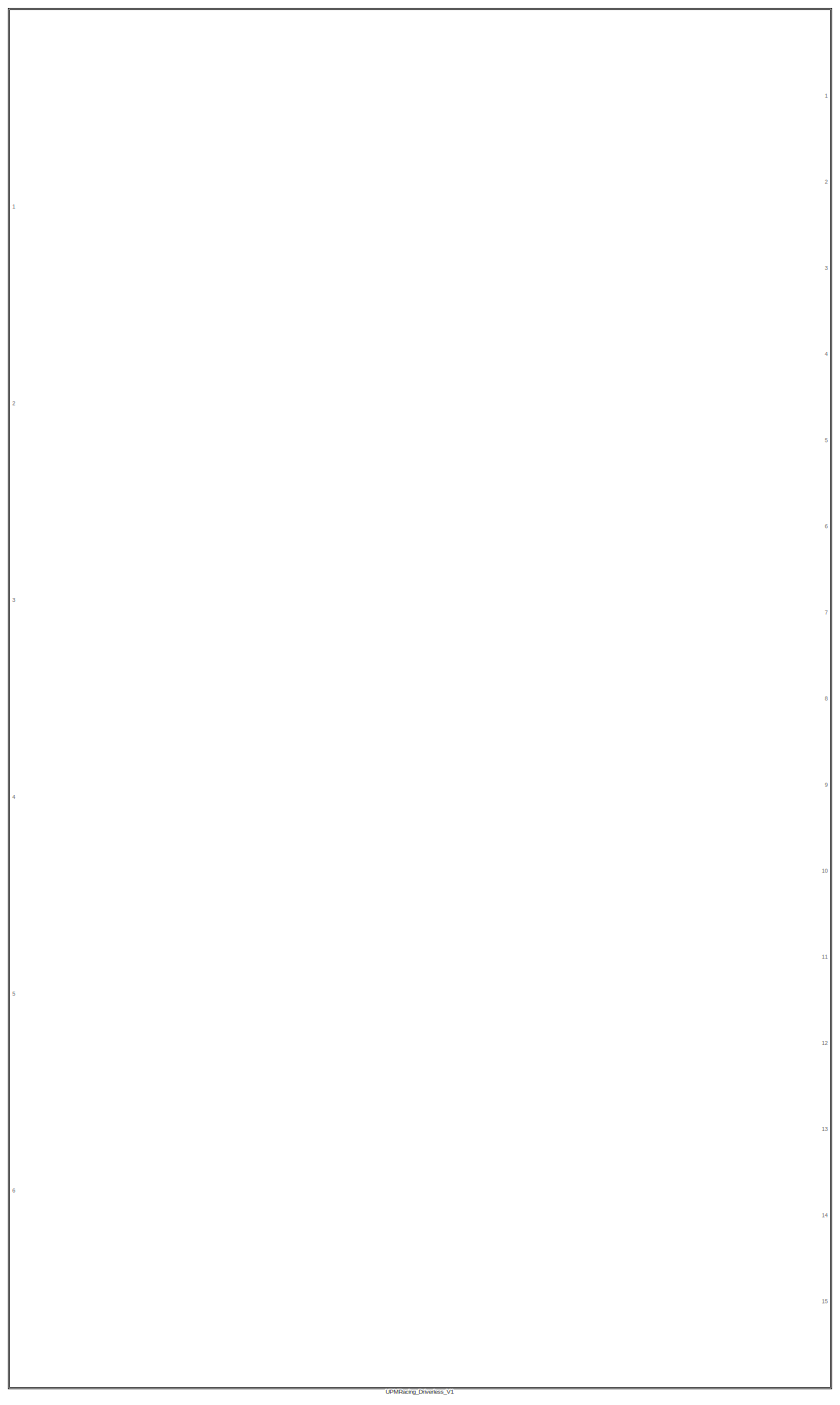
[diagram: root canvas - part 1/1, most of the canvas]
MODEL slx_15a45c7a0e71
KIND model
CONFIG AbsTol = auto
CONFIG EnableMultiTasking = off
CONFIG FixedStep = auto
CONFIG MaxStep = auto
CONFIG MinStep = auto
CONFIG RelTol = 1e-3
CONFIG SampleTimeConstraint = Unconstrained
CONFIG Solver = VariableStepAuto
CONFIG SolverName = VariableStepAuto
CONFIG StartTime = 0.0
CONFIG StopTime = 10.0
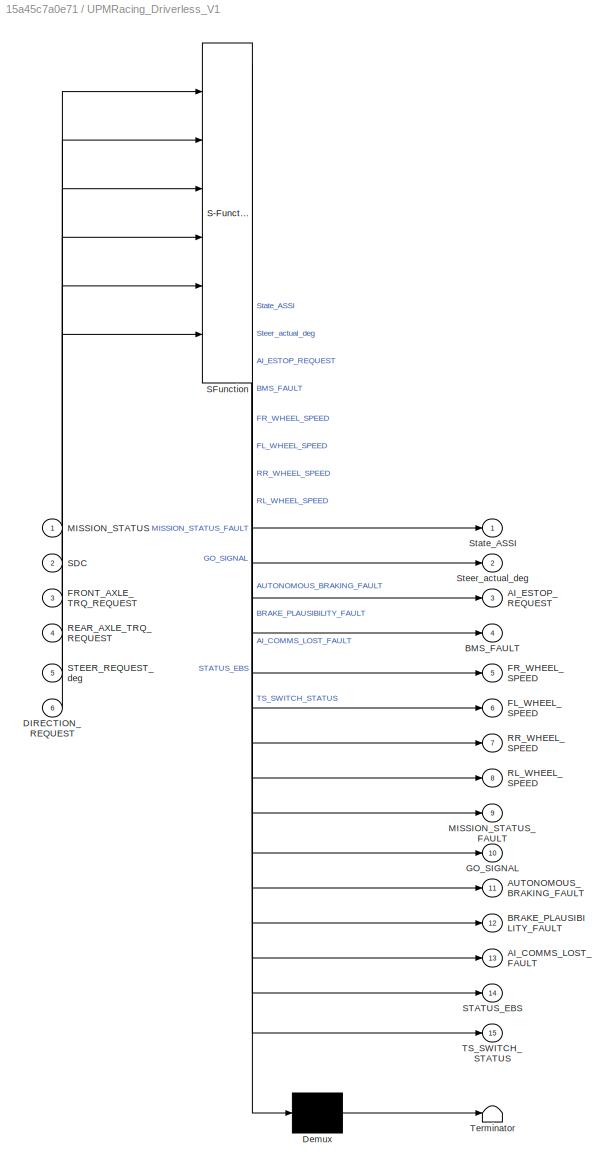
BLOCK [SubSystem] UPMRacing_Driverless_V1 
  ErrorFcn = Stateflow.Translate.translate
  PermitHierarchicalResolution = ExplicitOnly
  Ports = [6, 15]
  RequestExecContextInheritance = off
  SFBlockType = Chart
  TreatAsAtomicUnit = on
BLOCK [Demux] UPMRacing_Driverless_V1 / Demux 
  Outputs = 1
  Ports = [1, 1]
BLOCK [S-Function] UPMRacing_Driverless_V1 / SFunction 
  EnableBusSupport = on
  FunctionName = sf_sfun
  PortCounts = [6 16]
  Ports = [6, 16]
  SFcnIsStateOwnerBlock = off
  SFunctionDeploymentMode = off
  Tag = Stateflow S-Function 3
BLOCK [Terminator] UPMRacing_Driverless_V1 / Terminator 
BLOCK [Outport] UPMRacing_Driverless_V1 /AI_COMMS_LOST_FAULT
  IconDisplay = Port number
  Port = 13
BLOCK [Outport] UPMRacing_Driverless_V1 /AI_ESTOP_REQUEST
  IconDisplay = Port number
  Port = 3
BLOCK [Outport] UPMRacing_Driverless_V1 /AUTONOMOUS_BRAKING_FAULT
  IconDisplay = Port number
  Port = 11
BLOCK [Outport] UPMRacing_Driverless_V1 /BMS_FAULT
  IconDisplay = Port number
  Port = 4
BLOCK [Outport] UPMRacing_Driverless_V1 /BRAKE_PLAUSIBILITY_FAULT
  IconDisplay = Port number
  Port = 12
BLOCK [Inport] UPMRacing_Driverless_V1 /DIRECTION_REQUEST
  IconDisplay = Port number
  Port = 6
BLOCK [Outport] UPMRacing_Driverless_V1 /FL_WHEEL_SPEED
  IconDisplay = Port number
  Port = 6
BLOCK [Inport] UPMRacing_Driverless_V1 /FRONT_AXLE_TRQ_REQUEST
  IconDisplay = Port number
  Port = 3
BLOCK [Outport] UPMRacing_Driverless_V1 /FR_WHEEL_SPEED
  IconDisplay = Port number
  Port = 5
BLOCK [Outport] UPMRacing_Driverless_V1 /GO_SIGNAL
  IconDisplay = Port number
  Port = 10
BLOCK [Inport] UPMRacing_Driverless_V1 /MISSION_STATUS
  IconDisplay = Port number
BLOCK [Outport] UPMRacing_Driverless_V1 /MISSION_STATUS_FAULT
  IconDisplay = Port number
  Port = 9
BLOCK [Inport] UPMRacing_Driverless_V1 /REAR_AXLE_TRQ_REQUEST
  IconDisplay = Port number
  Port = 4
BLOCK [Outport] UPMRacing_Driverless_V1 /RL_WHEEL_SPEED
  IconDisplay = Port number
  Port = 8
BLOCK [Outport] UPMRacing_Driverless_V1 /RR_WHEEL_SPEED
  IconDisplay = Port number
  Port = 7
BLOCK [Inport] UPMRacing_Driverless_V1 /SDC
  IconDisplay = Port number
  Port = 2
BLOCK [Outport] UPMRacing_Driverless_V1 /STATUS_EBS
  IconDisplay = Port number
  Port = 14
BLOCK [Inport] UPMRacing_Driverless_V1 /STEER_REQUEST_deg
  IconDisplay = Port number
  Port = 5
BLOCK [Outport] UPMRacing_Driverless_V1 /State_ASSI
  IconDisplay = Port number
BLOCK [Outport] UPMRacing_Driverless_V1 /Steer_actual_deg
  IconDisplay = Port number
  Port = 2
BLOCK [Outport] UPMRacing_Driverless_V1 /TS_SWITCH_STATUS
  IconDisplay = Port number
  Port = 15
CHART UPMRacing_Driverless_V1
 states=8 transitions=14
  STATE_LABEL 'Main'
  STATE_LABEL 'AS_READY\nentry:\nState_ASSI=2'
  STATE_LABEL 'INTERMIDIATE\nentry:\nState_ASSI=2'
  STATE_LABEL 'AS_DRIVING\nentry:\nState_ASSI=3'
  STATE_LABEL 'EMERGENCY_BRAKE\nentry:\nState_ASSI=4'
  STATE_LABEL 'AS_FINISHED\nentry:\nState_ASSI=5'
  STATE_LABEL 'EMERGENCY_BRAKE_COMPLETED\nentry:\nState_ASSI=4'
  STATE_LABEL 'AS_OFF\nentry:\nState_ASSI = 1\n'
  STATE_LABEL '[FRONT_AXLE_TRQ_REQUEST ~= 0 ||...\nREAR_AXLE_TRQ_REQUEST  ~= 0 ||...\nSTEER_REQUEST_deg  ~= 0 ||...\nSteer_actual_deg >= 5  ||...\nDIRECTION_REQUEST ~= 0]'
  STATE_LABEL '[GO_SIGNAL == 1]'
  STATE_LABEL '[after(5,sec) &...\nFRONT_AXLE_TRQ_REQUEST == 0 &...\nREAR_AXLE_TRQ_REQUEST  == 0 &...\nSTEER_REQUEST_deg  == 0 &...\nSteer_actual_deg < 5  &...\nDIRECTION_REQUEST == 0 &...\nGO_SIGNAL == 0]'
  STATE_LABEL '[SDC==0]'
  STATE_LABEL '[SDC==0 ||...\nAS_SWITCH_STATUS == 0 ||...\nGO_SIGNAL == 0 ||...\nMISSION_STATUS_FAULT == 1 ||...\nAUTONOMOUS_BRAKING_FAULT == 1 || ... \nBRAKE_PLAUSIBILITY_FAULT == 1 ||...\nAI_ESTOP_REQUEST == 1 ||...\nAI_COMMS_LOST_FAULT == 1 ||...\nBMS_FAULT == 1 ||...\nSTATUS_EBS == 1]'
  STATE_LABEL '[AS_SWITCH_STATUS == 1 &...\nTS_SWITCH_STATUS == 1 &...\nSTATUS_EBS == 2 &...\nMISSION_STATUS == 1]'
  STATE_LABEL '[AS_SWITCH_STATUS == 0]'
  STATE_LABEL '[SDC==0]'
  STATE_LABEL '[MISSION_STATUS == 3 &...\nFR_WHEEL_SPEED<10 &...\nFL_WHEEL_SPEED<10 &...\nRR_WHEEL_SPEED<10 &...\nRL_WHEEL_SPEED<10]'
  STATE_LABEL '[SDC==0]'
  STATE_LABEL '[AS_SWITCH_STATUS == 0]'
  STATE_LABEL '[after(15,sec)]'
  STATE_LABEL '[AS_SWITCH_STATUS == 0]'
  STATE_LABEL 'AS_READY\nentry:\nState_ASSI=2'
  STATE_LABEL 'INTERMIDIATE\nentry:\nState_ASSI=2'
  STATE_LABEL 'AS_DRIVING\nentry:\nState_ASSI=3'
  STATE_LABEL 'EMERGENCY_BRAKE\nentry:\nState_ASSI=4'
  STATE_LABEL 'AS_FINISHED\nentry:\nState_ASSI=5'
  STATE_LABEL 'EMERGENCY_BRAKE_COMPLETED\nentry:\nState_ASSI=4'
  STATE_LABEL 'AS_OFF\nentry:\nState_ASSI = 1\n'
